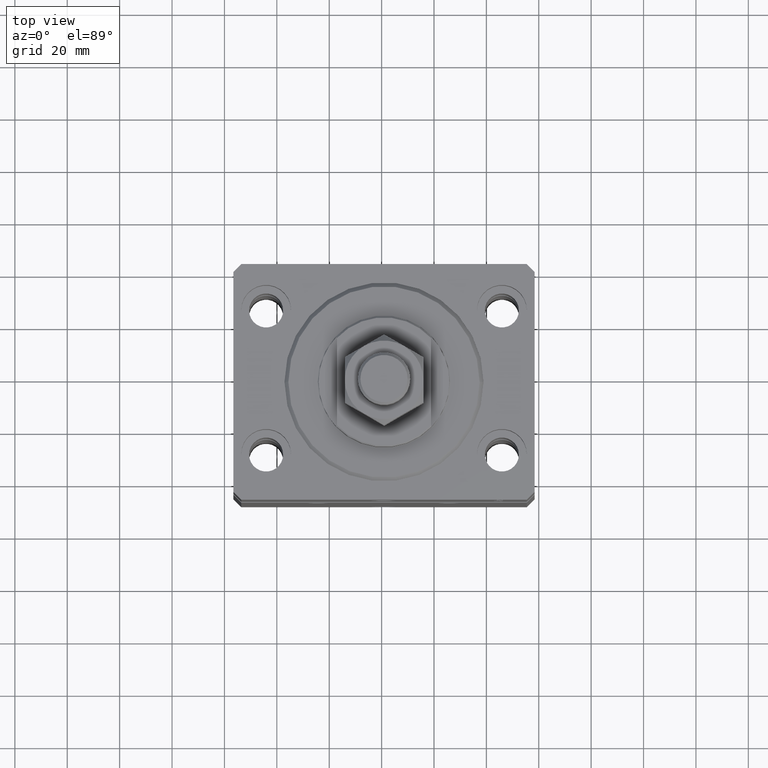
[diagram: clean part render]
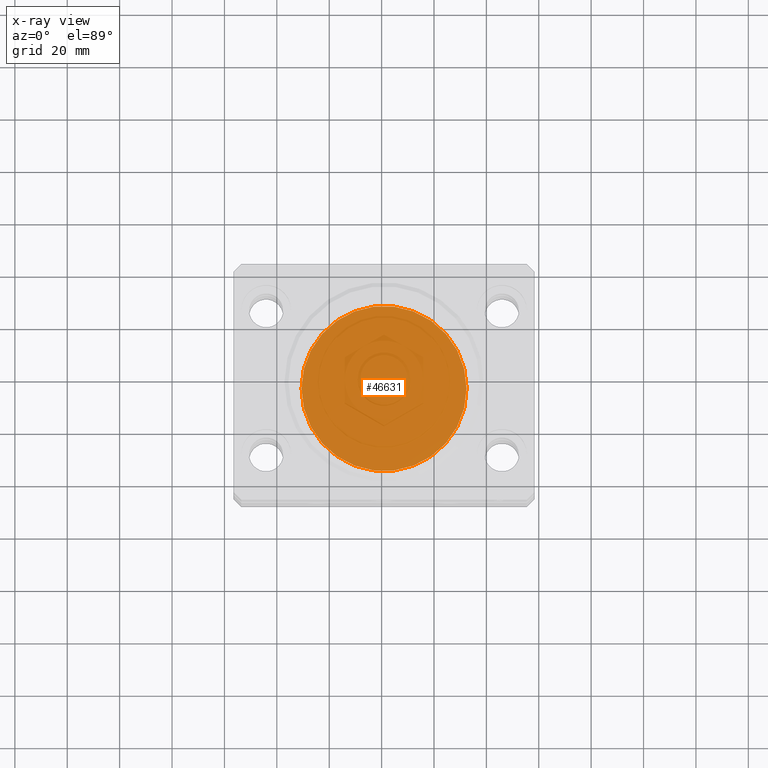
[diagram: x-ray — body ghosted, one internal face saturated and labeled with its STEP entity id]
A machine part, top view, then the same camera in x-ray: the body is ghosted and one INTERNAL B-rep face — a face not visible from any outside direction — is saturated and labeled: STEP entity #46631.
In plain terms, the highlighted planar face has unit normal (0, 0, 1).
Its self-contained STEP definition (entity closure, byte-faithful):
#1748 = DIRECTION ( 'NONE',  ( 1.000000000000000000, 0.000000000000000000, 0.000000000000000000 ) ) ;
#5605 = VERTEX_POINT ( 'NONE', #12303 ) ;
#8178 = ORIENTED_EDGE ( 'NONE', *, *, #39543, .T. ) ;
#9977 = AXIS2_PLACEMENT_3D ( 'NONE', #18781, #22431, #40151 ) ;
#10099 = VERTEX_POINT ( 'NONE', #27557 ) ;
#11520 = EDGE_CURVE ( 'NONE', #10099, #5605, #13809, .T. ) ;
#11963 = ORIENTED_EDGE ( 'NONE', *, *, #11520, .T. ) ;
#12303 = CARTESIAN_POINT ( 'NONE',  ( -31.50000000000000000, 3.857637417314162689E-15, -147.0999999999999943 ) ) ;
#13378 = DIRECTION ( 'NONE',  ( 1.000000000000000000, 0.000000000000000000, 0.000000000000000000 ) ) ;
#13809 = CIRCLE ( 'NONE', #29309, 31.50000000000000000 ) ;
#14022 = AXIS2_PLACEMENT_3D ( 'NONE', #35741, #46434, #13378 ) ;
#14877 = PLANE ( 'NONE',  #9977 ) ;
#16336 = DIRECTION ( 'NONE',  ( 0.000000000000000000, 0.000000000000000000, 1.000000000000000000 ) ) ;
#18781 = CARTESIAN_POINT ( 'NONE',  ( 0.000000000000000000, 0.000000000000000000, -147.0999999999999943 ) ) ;
#20705 = CARTESIAN_POINT ( 'NONE',  ( 0.000000000000000000, 0.000000000000000000, -147.0999999999999943 ) ) ;
#21700 = FACE_OUTER_BOUND ( 'NONE', #46376, .T. ) ;
#22431 = DIRECTION ( 'NONE',  ( 0.000000000000000000, 0.000000000000000000, 1.000000000000000000 ) ) ;
#27557 = CARTESIAN_POINT ( 'NONE',  ( 31.50000000000000000, 0.000000000000000000, -147.0999999999999943 ) ) ;
#29309 = AXIS2_PLACEMENT_3D ( 'NONE', #20705, #16336, #1748 ) ;
#35741 = CARTESIAN_POINT ( 'NONE',  ( 0.000000000000000000, 0.000000000000000000, -147.0999999999999943 ) ) ;
#39543 = EDGE_CURVE ( 'NONE', #5605, #10099, #44308, .T. ) ;
#40151 = DIRECTION ( 'NONE',  ( 1.000000000000000000, 0.000000000000000000, -0.000000000000000000 ) ) ;
#44308 = CIRCLE ( 'NONE', #14022, 31.50000000000000000 ) ;
#46376 = EDGE_LOOP ( 'NONE', ( #11963, #8178 ) ) ;
#46434 = DIRECTION ( 'NONE',  ( 0.000000000000000000, 0.000000000000000000, 1.000000000000000000 ) ) ;
#46631 = ADVANCED_FACE ( 'NONE', ( #21700 ), #14877, .T. ) ;